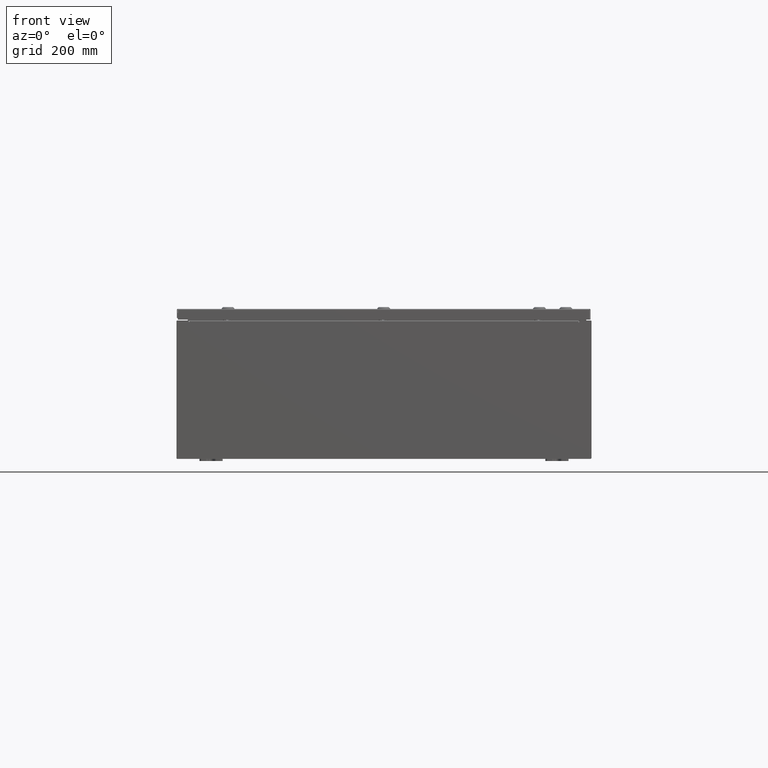
[diagram: clean part render]
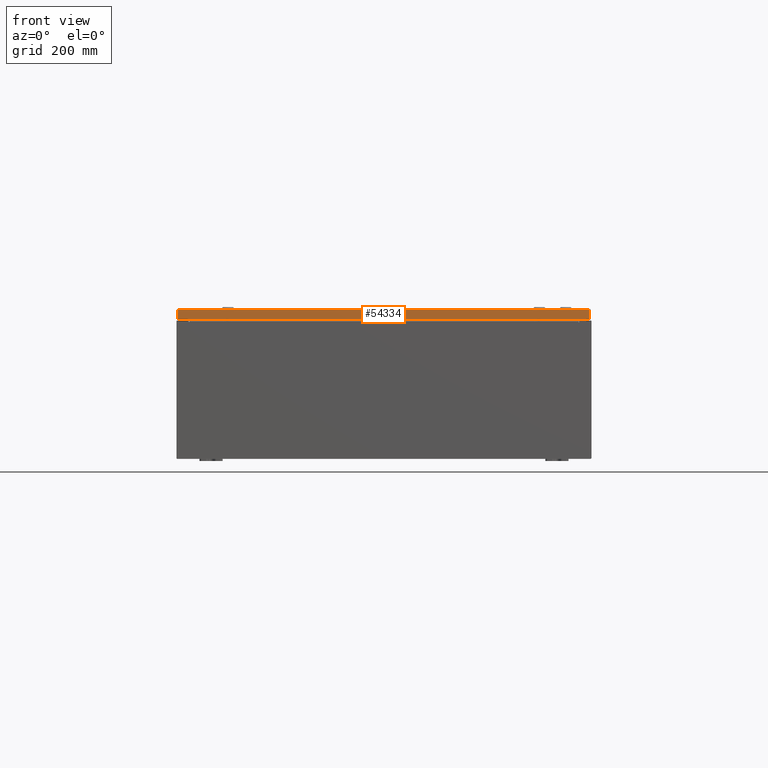
[diagram: same view with one face highlighted and labeled with its STEP entity id]
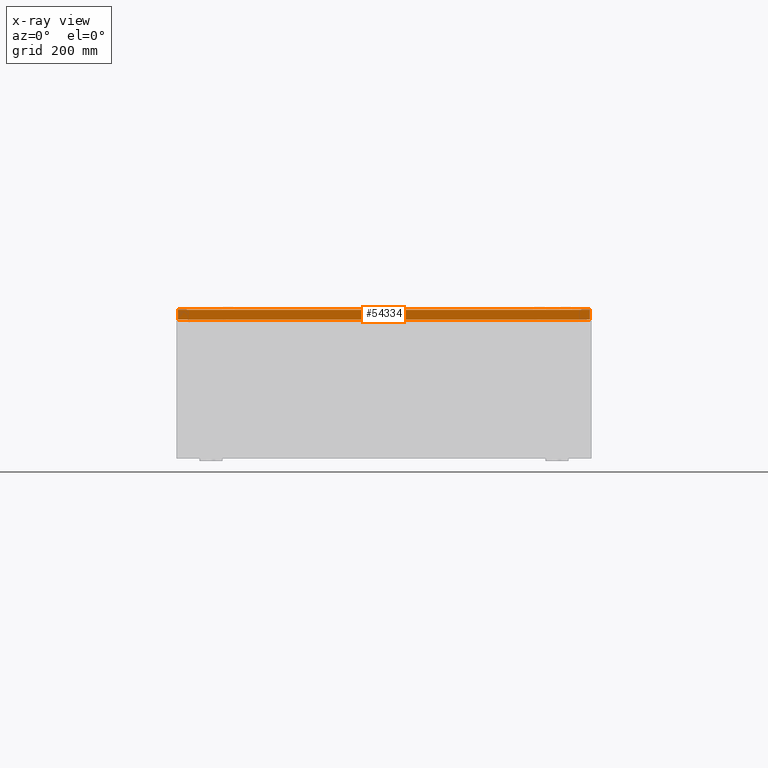
[diagram: x-ray of the same camera — body ghosted, the highlighted face saturated]
A machine part, front view. The second image highlights one B-rep face of the part: STEP entity #54334.
The next image is the same camera in x-ray: the body ghosted, the highlighted face saturated — about 0% of this face is hidden behind the body in this view.
In plain terms, the highlighted planar face has unit normal (-0, 1, -0).
Its self-contained STEP definition (entity closure, byte-faithful):
#635 = LINE ( 'NONE', #64597, #55516 ) ;
#2497 = VECTOR ( 'NONE', #46368, 39.37007874015748100 ) ;
#4367 = DIRECTION ( 'NONE',  ( -1.000000000000000000, -0.0000000000000000000, 1.218385167906012700E-016 ) ) ;
#4689 = CARTESIAN_POINT ( 'NONE',  ( 17.84865786437627100, -23.93750000000000000, -0.08769999999999550400 ) ) ;
#11222 = EDGE_LOOP ( 'NONE', ( #24877, #14335, #60091, #32057 ) ) ;
#11698 = DIRECTION ( 'NONE',  ( 1.000000000000000000, 6.170925750089154100E-031, -3.189293793798685400E-045 ) ) ;
#14335 = ORIENTED_EDGE ( 'NONE', *, *, #63223, .T. ) ;
#16637 = LINE ( 'NONE', #46140, #2497 ) ;
#23545 = VERTEX_POINT ( 'NONE', #49043 ) ;
#24008 = EDGE_CURVE ( 'NONE', #25620, #61227, #635, .T. ) ;
#24877 = ORIENTED_EDGE ( 'NONE', *, *, #24008, .F. ) ;
#25620 = VERTEX_POINT ( 'NONE', #59882 ) ;
#26340 = VECTOR ( 'NONE', #4367, 39.37007874015748100 ) ;
#27264 = CARTESIAN_POINT ( 'NONE',  ( -17.84865786437626800, -23.93750000000000000, 1.215004175463259200E-013 ) ) ;
#28624 = DIRECTION ( 'NONE',  ( -6.170925750089153200E-031, 1.000000000000000000, -5.064839849203732200E-015 ) ) ;
#32057 = ORIENTED_EDGE ( 'NONE', *, *, #34637, .F. ) ;
#33216 = CARTESIAN_POINT ( 'NONE',  ( -17.84865786437627100, -23.93750000000000400, -0.9376999999999954300 ) ) ;
#34637 = EDGE_CURVE ( 'NONE', #61227, #23545, #16637, .T. ) ;
#36163 = CARTESIAN_POINT ( 'NONE',  ( 17.93750000000000400, -23.93750000000000400, -0.9376999999999997600 ) ) ;
#37959 = DIRECTION ( 'NONE',  ( 0.0000000000000000000, -5.064839849203732200E-015, -1.000000000000000000 ) ) ;
#38982 = AXIS2_PLACEMENT_3D ( 'NONE', #60432, #28624, #65781 ) ;
#39108 = PLANE ( 'NONE',  #38982 ) ;
#43122 = VECTOR ( 'NONE', #37959, 39.37007874015748100 ) ;
#45015 = FACE_OUTER_BOUND ( 'NONE', #11222, .T. ) ;
#46140 = CARTESIAN_POINT ( 'NONE',  ( 17.84865786437627100, -23.93750000000000000, -0.07469999999999962800 ) ) ;
#46368 = DIRECTION ( 'NONE',  ( -0.0000000000000000000, -5.064839849203732200E-015, -1.000000000000000000 ) ) ;
#48141 = LINE ( 'NONE', #27264, #43122 ) ;
#49043 = CARTESIAN_POINT ( 'NONE',  ( 17.84865786437627100, -23.93750000000000400, -0.9376999999999997600 ) ) ;
#54334 = ADVANCED_FACE ( 'NONE', ( #45015 ), #39108, .F. ) ;
#55516 = VECTOR ( 'NONE', #11698, 39.37007874015748100 ) ;
#59882 = CARTESIAN_POINT ( 'NONE',  ( -17.84865786437627100, -23.93750000000000000, -0.08769999999999550400 ) ) ;
#60091 = ORIENTED_EDGE ( 'NONE', *, *, #65524, .F. ) ;
#60432 = CARTESIAN_POINT ( 'NONE',  ( 1.477165351427591000E-029, -23.93750000000000000, 1.215004175463259200E-013 ) ) ;
#61227 = VERTEX_POINT ( 'NONE', #4689 ) ;
#61447 = VERTEX_POINT ( 'NONE', #33216 ) ;
#63223 = EDGE_CURVE ( 'NONE', #25620, #61447, #48141, .T. ) ;
#64597 = CARTESIAN_POINT ( 'NONE',  ( 17.93750000000000400, -23.93750000000000000, -0.08769999999999550400 ) ) ;
#65524 = EDGE_CURVE ( 'NONE', #23545, #61447, #67069, .T. ) ;
#65781 = DIRECTION ( 'NONE',  ( 0.0000000000000000000, 5.064839849203732200E-015, 1.000000000000000000 ) ) ;
#67069 = LINE ( 'NONE', #36163, #26340 ) ;